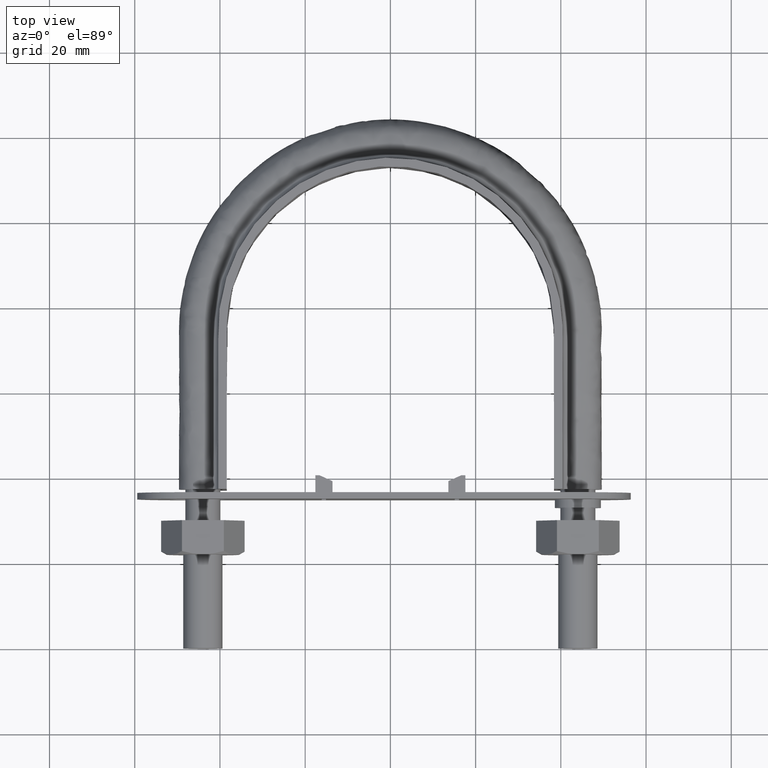
[diagram: clean part render]
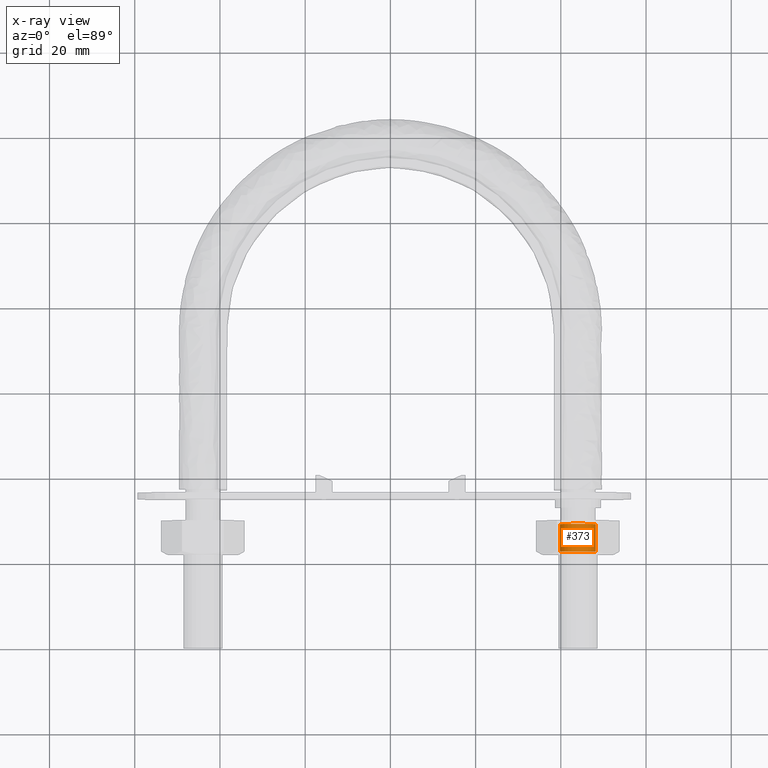
[diagram: x-ray — body ghosted, one internal face saturated and labeled with its STEP entity id]
A machine part, top view, then the same camera in x-ray: the body is ghosted and one INTERNAL B-rep face — a face not visible from any outside direction — is saturated and labeled: STEP entity #373.
In plain terms, the highlighted cylindrical surface (bore or boss wall) has radius 4.188 mm, axis along (0, 1, 0).
Its self-contained STEP definition (entity closure, byte-faithful):
#373 = ADVANCED_FACE( '', ( #616, #617 ), #618, .F. );
#616 = FACE_OUTER_BOUND( '', #1540, .T. );
#617 = FACE_OUTER_BOUND( '', #1541, .T. );
#618 = CYLINDRICAL_SURFACE( '', #1542, 4.18799999999826 );
#1540 = EDGE_LOOP( '', ( #2329 ) );
#1541 = EDGE_LOOP( '', ( #2330 ) );
#1542 = AXIS2_PLACEMENT_3D( '', #2331, #2332, #2333 );
#2329 = ORIENTED_EDGE( '', *, *, #2584, .F. );
#2330 = ORIENTED_EDGE( '', *, *, #2548, .T. );
#2331 = CARTESIAN_POINT( '', ( 44.0000000000000, 30.0000000000000, 3.71436822271808E-015 ) );
#2332 = DIRECTION( '', ( 2.44921270764476E-016, 1.00000000000000, 6.12303176911187E-017 ) );
#2333 = DIRECTION( '', ( -0.866025403784429, 2.42723201254761E-016, -0.500000000000017 ) );
#2548 = EDGE_CURVE( '', #2911, #2911, #2912, .T. );
#2584 = EDGE_CURVE( '', #2967, #2967, #2968, .F. );
#2911 = VERTEX_POINT( '', #3713 );
#2912 = CIRCLE( '', #3714, 4.18799999999826 );
#2967 = VERTEX_POINT( '', #3818 );
#2968 = CIRCLE( '', #3819, 4.18799999999826 );
#3713 = CARTESIAN_POINT( '', ( 39.8120000000017, 29.1880000000000, 3.66464920475289E-015 ) );
#3714 = AXIS2_PLACEMENT_3D( '', #4098, #4099, #4100 );
#3818 = CARTESIAN_POINT( '', ( 48.1879999999983, 22.8120000000001, 3.27424469915432E-015 ) );
#3819 = AXIS2_PLACEMENT_3D( '', #4157, #4158, #4159 );
#4098 = CARTESIAN_POINT( '', ( 44.0000000000000, 29.1880000000000, 3.66464920475289E-015 ) );
#4099 = DIRECTION( '', ( 2.44921270764476E-016, 1.00000000000000, 6.12303176911188E-017 ) );
#4100 = DIRECTION( '', ( -1.00000000000000, 2.44921270764476E-016, 0.000000000000000 ) );
#4157 = CARTESIAN_POINT( '', ( 44.0000000000000, 22.8120000000001, 3.27424469915432E-015 ) );
#4158 = DIRECTION( '', ( -2.44921270764476E-016, -1.00000000000000, -6.12303176911192E-017 ) );
#4159 = DIRECTION( '', ( 1.00000000000000, -2.44921270764476E-016, 0.000000000000000 ) );